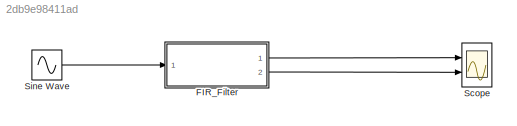
MODEL slx_2db9e98411ad
KIND model
CONFIG AbsTol = auto
CONFIG EnableMultiTasking = off
CONFIG FixedStep = auto
CONFIG MaxStep = auto
CONFIG MinStep = auto
CONFIG RelTol = 1e-3
CONFIG SampleTimeConstraint = Unconstrained
CONFIG Solver = VariableStepAuto
CONFIG SolverName = VariableStepAuto
CONFIG StartTime = 0.0
CONFIG StopTime = 10.0
BLOCK [ModelReference] FIR_Filter
  ModelNameDialog = FIR_Filter1
  ModelReferenceVersion = 1.8
  Ports = [1, 2]
BLOCK [Scope] Scope
  Floating = off
  NumInputPorts = 2
  Ports = [2]
  ScopeSpecificationString = Simulink.scopes.TimeScopeBlockCfg('CurrentConfiguration', extmgr.ConfigurationSet(extmgr.Configuration('Core','General UI',true),extmgr.Configuration('Core','Source UI',true),extmgr.Configuration('Sources','WiredSimulink',true),extmgr.Configuration('Visuals','Time Domain',true,'SerializedDisplays',{struct('MinYLimReal','-1.18882','MaxYLimReal','1.18882','YLabelReal','','MinYLimMag','0.00000','MaxY...<+2007ch>
BLOCK [Sin] Sine Wave
  Frequency = 2*pi
  Ports = [0, 1]
  SampleTime = 0
LINE FIR_Filter:1 -> Scope:1
LINE FIR_Filter:2 -> Scope:2
LINE Sine Wave:1 -> FIR_Filter:1
